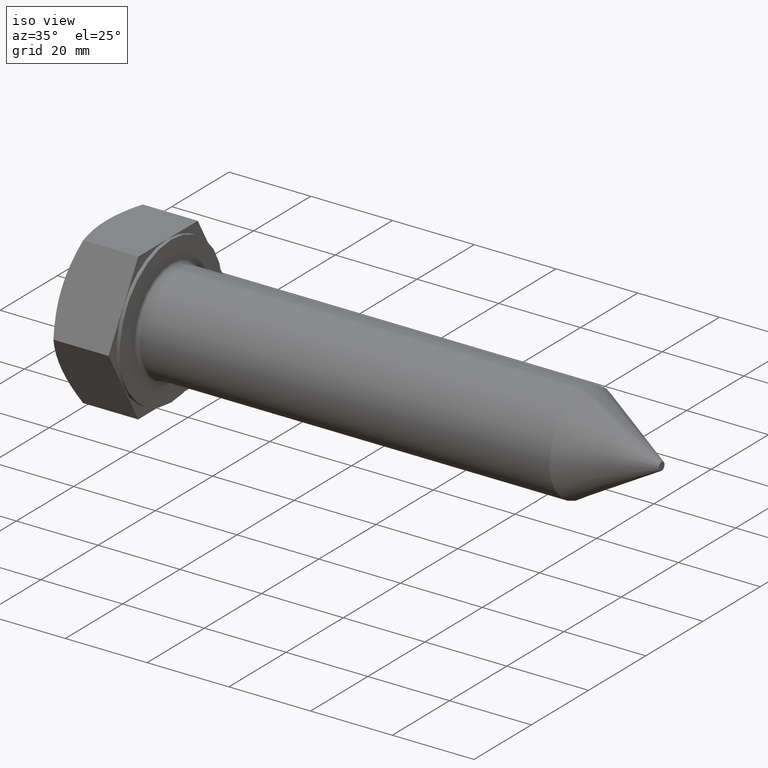
[diagram: clean part render]
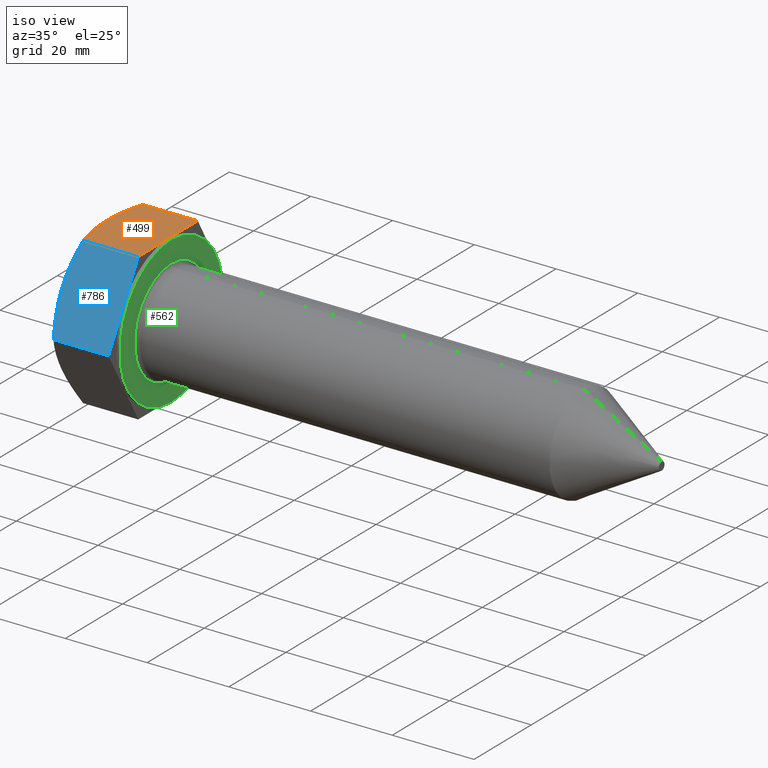
[diagram: same view with three faces highlighted in distinct colors, each labeled with its STEP entity id]
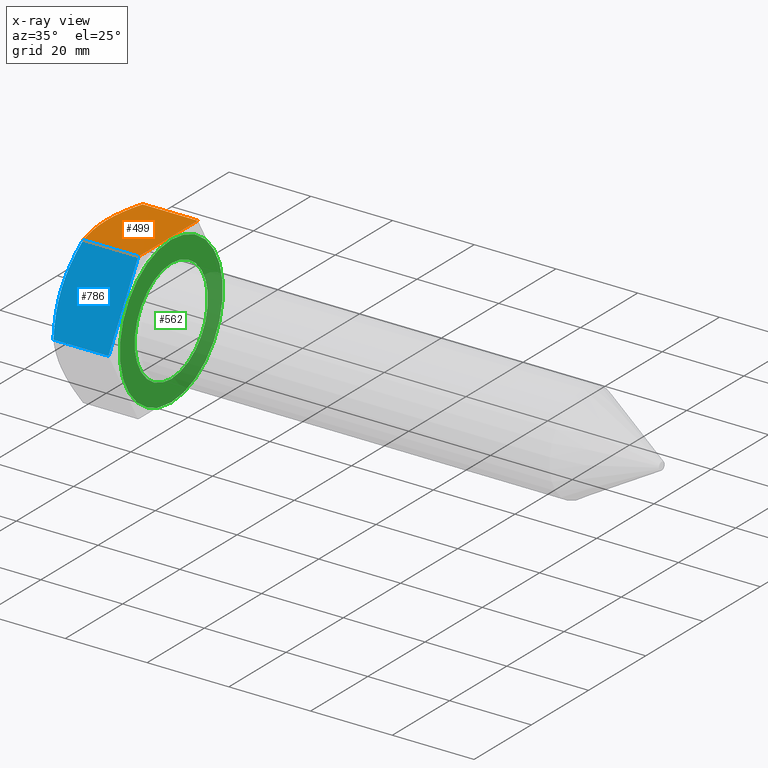
[diagram: x-ray of the same camera — body ghosted, the three highlighted faces saturated]
A machine part, iso view with three faces highlighted in distinct colors.
The next image is the same camera in x-ray (body ghosted, the three faces saturated) — at least one of them is partly hidden behind the body in this view.
Their STEP definitions:

[orange] entity #499 — the highlighted planar face has unit normal (0, 0, -1).
#11 = VERTEX_POINT ( 'NONE', #793 ) ;
#14 = EDGE_CURVE ( 'NONE', #815, #11, #583, .T. ) ;
#15 = CARTESIAN_POINT ( 'NONE',  ( 0.1861329649104769279, 3.532202406795380334, 18.00000000000000000 ) ) ;
#22 = CARTESIAN_POINT ( 'NONE',  ( 15.10000000000000142, 10.39230484541324984, 18.00000000000000000 ) ) ;
#66 = EDGE_LOOP ( 'NONE', ( #217, #354, #667, #346, #111, #535 ) ) ;
#82 = EDGE_CURVE ( 'NONE', #232, #815, #436, .T. ) ;
#98 = CARTESIAN_POINT ( 'NONE',  ( -9.833111369903254396E-16, -1.757439789148936171, 17.99999999999999289 ) ) ;
#110 = CARTESIAN_POINT ( 'NONE',  ( 15.10000000000000142, 10.39230484541324984, 18.00000000000000000 ) ) ;
#111 = ORIENTED_EDGE ( 'NONE', *, *, #284, .F. ) ;
#133 = VECTOR ( 'NONE', #236, 1000.000000000000000 ) ;
#156 = CARTESIAN_POINT ( 'NONE',  ( 0.1511496491369540007, -3.502203439732907597, 17.99999999999999645 ) ) ;
#159 = CARTESIAN_POINT ( 'NONE',  ( 0.000000000000000000, -3.004629197474327134E-15, 18.00000000000000000 ) ) ;
#164 = DIRECTION ( 'NONE',  ( 0.000000000000000000, 1.000000000000000000, 1.669238443041292852E-16 ) ) ;
#167 = CARTESIAN_POINT ( 'NONE',  ( 15.10000000000000142, 0.000000000000000000, 18.00000000000000000 ) ) ;
#188 = VERTEX_POINT ( 'NONE', #605 ) ;
#217 = ORIENTED_EDGE ( 'NONE', *, *, #82, .F. ) ;
#230 = PLANE ( 'NONE',  #804 ) ;
#232 = VERTEX_POINT ( 'NONE', #110 ) ;
#236 = DIRECTION ( 'NONE',  ( 0.000000000000000000, -1.000000000000000000, -1.669238443041292852E-16 ) ) ;
#238 = FACE_OUTER_BOUND ( 'NONE', #66, .T. ) ;
#284 = EDGE_CURVE ( 'NONE', #11, #188, #889, .T. ) ;
#306 = EDGE_CURVE ( 'NONE', #232, #895, #678, .T. ) ;
#307 = VECTOR ( 'NONE', #746, 1000.000000000000000 ) ;
#311 = CARTESIAN_POINT ( 'NONE',  ( 0.2962297688443727983, 4.407606553784678916, 18.00000000000000000 ) ) ;
#346 = ORIENTED_EDGE ( 'NONE', *, *, #443, .F. ) ;
#354 = ORIENTED_EDGE ( 'NONE', *, *, #306, .T. ) ;
#364 = VECTOR ( 'NONE', #654, 1000.000000000000000 ) ;
#370 = CARTESIAN_POINT ( 'NONE',  ( 1.607695154586711306, -10.39230484541321786, 17.99999999999999645 ) ) ;
#380 = CARTESIAN_POINT ( 'NONE',  ( 0.000000000000000000, -3.004629197474327134E-15, 18.00000000000000000 ) ) ;
#394 = CARTESIAN_POINT ( 'NONE',  ( 0.7420490696905722716, -6.967527342740340579, 18.00000000000000000 ) ) ;
#423 = CARTESIAN_POINT ( 'NONE',  ( 15.90000000000000036, -10.39230484541321786, 17.99999999999999645 ) ) ;
#432 = DIRECTION ( 'NONE',  ( 0.000000000000000000, 1.669238443041292852E-16, -1.000000000000000000 ) ) ;
#435 = CARTESIAN_POINT ( 'NONE',  ( 15.90000000000000036, 10.39230484541324984, 18.00000000000000000 ) ) ;
#436 = LINE ( 'NONE', #861, #364 ) ;
#443 = EDGE_CURVE ( 'NONE', #188, #595, #744, .T. ) ;
#475 = DIRECTION ( 'NONE',  ( -1.000000000000000000, -0.000000000000000000, -0.000000000000000000 ) ) ;
#498 = CARTESIAN_POINT ( 'NONE',  ( 1.363545094715576500, -9.546544228677626975, 18.00000000000000000 ) ) ;
#499 = ADVANCED_FACE ( 'NONE', ( #238 ), #230, .F. ) ;
#533 = EDGE_CURVE ( 'NONE', #595, #895, #760, .T. ) ;
#535 = ORIENTED_EDGE ( 'NONE', *, *, #14, .F. ) ;
#538 = CARTESIAN_POINT ( 'NONE',  ( 0.000000000000000000, -3.004629197474327134E-15, 18.00000000000000000 ) ) ;
#576 = CARTESIAN_POINT ( 'NONE',  ( 0.5705999791138046673, -6.103185995793325880, 17.99999999999999645 ) ) ;
#581 = CARTESIAN_POINT ( 'NONE',  ( 0.03745816183298621149, 1.762465172387030377, 17.99999999999999645 ) ) ;
#583 = LINE ( 'NONE', #22, #133 ) ;
#586 = CARTESIAN_POINT ( 'NONE',  ( 0.7186714481883521577, 7.009429243568276569, 18.00000000000000355 ) ) ;
#595 = VERTEX_POINT ( 'NONE', #538 ) ;
#605 = CARTESIAN_POINT ( 'NONE',  ( 1.607695154586711306, -10.39230484541321786, 17.99999999999999645 ) ) ;
#635 = CARTESIAN_POINT ( 'NONE',  ( -1.032956679176618869E-15, 0.8793290471263817132, 17.99999999999999645 ) ) ;
#639 = CARTESIAN_POINT ( 'NONE',  ( 1.139104001433366431, -8.691668190334251420, 17.99999999999999289 ) ) ;
#654 = DIRECTION ( 'NONE',  ( 0.000000000000000000, -1.000000000000000000, -1.669238443041292852E-16 ) ) ;
#667 = ORIENTED_EDGE ( 'NONE', *, *, #533, .F. ) ;
#678 = LINE ( 'NONE', #691, #307 ) ;
#691 = CARTESIAN_POINT ( 'NONE',  ( 15.90000000000000036, 10.39230484541324984, 18.00000000000000000 ) ) ;
#703 = VECTOR ( 'NONE', #475, 1000.000000000000000 ) ;
#744 = B_SPLINE_CURVE_WITH_KNOTS ( 'NONE', 3,
 ( #370, #498, #639, #394, #576, #156, #98, #159 ),
 .UNSPECIFIED., .F., .F.,
 ( 4, 2, 2, 4 ),
 ( 0.01898813626323230322, 0.02161756088090733760, 0.02424698549858237198, 0.02950583473393243727 ),
 .UNSPECIFIED. ) ;
#746 = DIRECTION ( 'NONE',  ( -1.000000000000000000, -0.000000000000000000, -0.000000000000000000 ) ) ;
#760 = B_SPLINE_CURVE_WITH_KNOTS ( 'NONE', 3,
 ( #380, #635, #581, #15, #311, #586, #789, #776 ),
 .UNSPECIFIED., .F., .F.,
 ( 4, 2, 2, 4 ),
 ( 0.02950583473393243727, 0.03213708214033209748, 0.03476832954673175768, 0.04003082435953108503 ),
 .UNSPECIFIED. ) ;
#776 = CARTESIAN_POINT ( 'NONE',  ( 1.607695154586723074, 10.39230484541324984, 18.00000000000000000 ) ) ;
#789 = CARTESIAN_POINT ( 'NONE',  ( 1.122525531275964106, 8.711627969686659867, 18.00000000000000000 ) ) ;
#793 = CARTESIAN_POINT ( 'NONE',  ( 15.10000000000000142, -10.39230484541321786, 17.99999999999999645 ) ) ;
#804 = AXIS2_PLACEMENT_3D ( 'NONE', #435, #432, #164 ) ;
#815 = VERTEX_POINT ( 'NONE', #167 ) ;
#861 = CARTESIAN_POINT ( 'NONE',  ( 15.10000000000000142, 10.39230484541324984, 18.00000000000000000 ) ) ;
#863 = CARTESIAN_POINT ( 'NONE',  ( 1.607695154586723074, 10.39230484541324984, 18.00000000000000000 ) ) ;
#889 = LINE ( 'NONE', #423, #703 ) ;
#895 = VERTEX_POINT ( 'NONE', #863 ) ;

[blue] entity #786 — the highlighted planar face has unit normal (0, 0.866, -0.5).
#4 = CARTESIAN_POINT ( 'NONE',  ( 15.90000000000000036, -20.78460969082653520, 0.000000000000000000 ) ) ;
#8 = CARTESIAN_POINT ( 'NONE',  ( 0.000000000000000000, -15.58845726811987298, 9.000000000000035527 ) ) ;
#11 = VERTEX_POINT ( 'NONE', #793 ) ;
#21 = CARTESIAN_POINT ( 'NONE',  ( 15.10000000000000142, -20.78460969082653520, 0.000000000000000000 ) ) ;
#30 = VECTOR ( 'NONE', #242, 1000.000000000000114 ) ;
#50 = DIRECTION ( 'NONE',  ( -1.000000000000000000, -0.000000000000000000, -0.000000000000000000 ) ) ;
#53 = B_SPLINE_CURVE_WITH_KNOTS ( 'NONE', 3,
 ( #839, #637, #145, #83, #564, #568 ),
 .UNSPECIFIED., .F., .F.,
 ( 4, 2, 4 ),
 ( 2.380728322783984379E-07, 0.005257893135091062063, 0.01051554819734984610 ),
 .UNSPECIFIED. ) ;
#61 = AXIS2_PLACEMENT_3D ( 'NONE', #4, #285, #560 ) ;
#69 = CARTESIAN_POINT ( 'NONE',  ( 1.607695154586711306, -10.39230484541321786, 17.99999999999999645 ) ) ;
#83 = CARTESIAN_POINT ( 'NONE',  ( 0.1532218116813510445, -17.34799259689862438, 5.952395412842812483 ) ) ;
#86 = CARTESIAN_POINT ( 'NONE',  ( 15.10000000000000142, -20.78460969082653520, 0.000000000000000000 ) ) ;
#87 = EDGE_CURVE ( 'NONE', #11, #563, #701, .T. ) ;
#101 = CARTESIAN_POINT ( 'NONE',  ( 0.000000000000000000, -15.58845726811987298, 9.000000000000035527 ) ) ;
#128 = LINE ( 'NONE', #805, #649 ) ;
#145 = CARTESIAN_POINT ( 'NONE',  ( 0.7126204852947248813, -19.07835557137324400, 2.955318825516787040 ) ) ;
#154 = FACE_OUTER_BOUND ( 'NONE', #828, .T. ) ;
#179 = EDGE_CURVE ( 'NONE', #500, #578, #128, .T. ) ;
#188 = VERTEX_POINT ( 'NONE', #605 ) ;
#202 = CARTESIAN_POINT ( 'NONE',  ( 0.1850551574587440407, -13.82825457289346716, 12.04876049975180052 ) ) ;
#213 = CARTESIAN_POINT ( 'NONE',  ( 0.2939692054342004646, -13.39305315375700900, 12.80255146922222131 ) ) ;
#233 = PLANE ( 'NONE',  #61 ) ;
#240 = ORIENTED_EDGE ( 'NONE', *, *, #742, .F. ) ;
#241 = CARTESIAN_POINT ( 'NONE',  ( 15.10000000000000142, -20.78460969082653520, 0.000000000000000000 ) ) ;
#242 = DIRECTION ( 'NONE',  ( 0.000000000000000000, -0.5000000000000018874, -0.8660254037844374864 ) ) ;
#249 = ORIENTED_EDGE ( 'NONE', *, *, #290, .F. ) ;
#258 = CARTESIAN_POINT ( 'NONE',  ( 1.607695154586731512, -20.78460969082653520, -6.189267279696335278E-16 ) ) ;
#284 = EDGE_CURVE ( 'NONE', #11, #188, #889, .T. ) ;
#285 = DIRECTION ( 'NONE',  ( 0.000000000000000000, 0.8660254037844375974, -0.5000000000000019984 ) ) ;
#286 = CARTESIAN_POINT ( 'NONE',  ( 1.118160017449559396, -11.24020457502480141, 16.53139458858883515 ) ) ;
#288 = B_SPLINE_CURVE_WITH_KNOTS ( 'NONE', 3,
 ( #8, #555, #494, #291, #356, #202, #213, #814, #286, #69 ),
 .UNSPECIFIED., .F., .F.,
 ( 4, 2, 2, 2, 4 ),
 ( 0.01051554819734984610, 0.01182504667393349633, 0.01313454515051714483, 0.01575354210368443836, 0.02099153601001902542 ),
 .UNSPECIFIED. ) ;
#290 = EDGE_CURVE ( 'NONE', #874, #188, #288, .T. ) ;
#291 = CARTESIAN_POINT ( 'NONE',  ( 0.04683108270947267116, -14.70525031332732979, 10.52975931929887032 ) ) ;
#333 = ORIENTED_EDGE ( 'NONE', *, *, #404, .F. ) ;
#356 = CARTESIAN_POINT ( 'NONE',  ( 0.07476367467993630389, -14.48545281793691686, 10.91045974869144786 ) ) ;
#404 = EDGE_CURVE ( 'NONE', #563, #500, #686, .T. ) ;
#423 = CARTESIAN_POINT ( 'NONE',  ( 15.90000000000000036, -10.39230484541321786, 17.99999999999999645 ) ) ;
#424 = ORIENTED_EDGE ( 'NONE', *, *, #284, .T. ) ;
#475 = DIRECTION ( 'NONE',  ( -1.000000000000000000, -0.000000000000000000, -0.000000000000000000 ) ) ;
#494 = CARTESIAN_POINT ( 'NONE',  ( 0.009429105422151376481, -15.14637444941019950, 9.765709903158414917 ) ) ;
#500 = VERTEX_POINT ( 'NONE', #241 ) ;
#506 = DIRECTION ( 'NONE',  ( 0.000000000000000000, -0.5000000000000018874, -0.8660254037844374864 ) ) ;
#532 = CARTESIAN_POINT ( 'NONE',  ( 15.10000000000000142, -15.58845726811987475, 9.000000000000035527 ) ) ;
#541 = ORIENTED_EDGE ( 'NONE', *, *, #179, .F. ) ;
#555 = CARTESIAN_POINT ( 'NONE',  ( -1.004559899619918845E-14, -15.36796739199401252, 9.381899668004569648 ) ) ;
#560 = DIRECTION ( 'NONE',  ( 0.000000000000000000, 0.5000000000000018874, 0.8660254037844374864 ) ) ;
#563 = VERTEX_POINT ( 'NONE', #532 ) ;
#564 = CARTESIAN_POINT ( 'NONE',  ( -9.906897351086296766E-15, -16.47372726584776714, 7.466667385518913846 ) ) ;
#568 = CARTESIAN_POINT ( 'NONE',  ( 0.000000000000000000, -15.58845726811987298, 9.000000000000035527 ) ) ;
#578 = VERTEX_POINT ( 'NONE', #258 ) ;
#605 = CARTESIAN_POINT ( 'NONE',  ( 1.607695154586711306, -10.39230484541321786, 17.99999999999999645 ) ) ;
#637 = CARTESIAN_POINT ( 'NONE',  ( 1.116934336526958615, -19.93458701958329016, 1.472282454178710287 ) ) ;
#649 = VECTOR ( 'NONE', #50, 1000.000000000000000 ) ;
#680 = ORIENTED_EDGE ( 'NONE', *, *, #87, .F. ) ;
#686 = LINE ( 'NONE', #21, #729 ) ;
#701 = LINE ( 'NONE', #86, #30 ) ;
#703 = VECTOR ( 'NONE', #475, 1000.000000000000000 ) ;
#729 = VECTOR ( 'NONE', #506, 1000.000000000000114 ) ;
#742 = EDGE_CURVE ( 'NONE', #578, #874, #53, .T. ) ;
#786 = ADVANCED_FACE ( 'NONE', ( #154 ), #233, .F. ) ;
#793 = CARTESIAN_POINT ( 'NONE',  ( 15.10000000000000142, -10.39230484541321786, 17.99999999999999645 ) ) ;
#805 = CARTESIAN_POINT ( 'NONE',  ( 15.90000000000000036, -20.78460969082653520, 0.000000000000000000 ) ) ;
#814 = CARTESIAN_POINT ( 'NONE',  ( 0.7140392532422266125, -12.09517842721667158, 15.05053643744964376 ) ) ;
#828 = EDGE_LOOP ( 'NONE', ( #680, #424, #249, #240, #541, #333 ) ) ;
#839 = CARTESIAN_POINT ( 'NONE',  ( 1.607695154586731512, -20.78460969082653520, -6.189267279696335278E-16 ) ) ;
#874 = VERTEX_POINT ( 'NONE', #101 ) ;
#889 = LINE ( 'NONE', #423, #703 ) ;

[green] entity #562 — the highlighted planar face has unit normal (1, 0, -0).
#77 = VERTEX_POINT ( 'NONE', #165 ) ;
#103 = CARTESIAN_POINT ( 'NONE',  ( 15.90000000000000036, 2.204364238465235428E-15, -18.00000000000000000 ) ) ;
#125 = VERTEX_POINT ( 'NONE', #103 ) ;
#138 = CARTESIAN_POINT ( 'NONE',  ( 15.90000000000000036, 0.000000000000000000, -12.80000000000000071 ) ) ;
#165 = CARTESIAN_POINT ( 'NONE',  ( 15.90000000000000036, 1.567547902908612184E-15, 12.80000000000000071 ) ) ;
#177 = AXIS2_PLACEMENT_3D ( 'NONE', #780, #218, #575 ) ;
#198 = EDGE_CURVE ( 'NONE', #303, #77, #747, .T. ) ;
#218 = DIRECTION ( 'NONE',  ( 1.000000000000000000, 0.000000000000000000, -0.000000000000000000 ) ) ;
#221 = CIRCLE ( 'NONE', #177, 18.00000000000000000 ) ;
#227 = ORIENTED_EDGE ( 'NONE', *, *, #365, .T. ) ;
#229 = CARTESIAN_POINT ( 'NONE',  ( 15.90000000000000036, 0.000000000000000000, 0.000000000000000000 ) ) ;
#237 = ORIENTED_EDGE ( 'NONE', *, *, #743, .T. ) ;
#252 = DIRECTION ( 'NONE',  ( 0.000000000000000000, 0.000000000000000000, -1.000000000000000000 ) ) ;
#282 = DIRECTION ( 'NONE',  ( 1.000000000000000000, 0.000000000000000000, -0.000000000000000000 ) ) ;
#294 = DIRECTION ( 'NONE',  ( 0.000000000000000000, 0.000000000000000000, -1.000000000000000000 ) ) ;
#296 = AXIS2_PLACEMENT_3D ( 'NONE', #229, #429, #294 ) ;
#303 = VERTEX_POINT ( 'NONE', #138 ) ;
#357 = EDGE_LOOP ( 'NONE', ( #687, #237 ) ) ;
#365 = EDGE_CURVE ( 'NONE', #125, #495, #552, .T. ) ;
#392 = AXIS2_PLACEMENT_3D ( 'NONE', #543, #400, #676 ) ;
#400 = DIRECTION ( 'NONE',  ( 1.000000000000000000, 0.000000000000000000, -0.000000000000000000 ) ) ;
#411 = PLANE ( 'NONE',  #392 ) ;
#429 = DIRECTION ( 'NONE',  ( -1.000000000000000000, -0.000000000000000000, 0.000000000000000000 ) ) ;
#495 = VERTEX_POINT ( 'NONE', #782 ) ;
#502 = FACE_OUTER_BOUND ( 'NONE', #584, .T. ) ;
#543 = CARTESIAN_POINT ( 'NONE',  ( 15.90000000000000036, 20.78460969082654231, -4.801626444421300846E-15 ) ) ;
#552 = CIRCLE ( 'NONE', #779, 18.00000000000000000 ) ;
#562 = ADVANCED_FACE ( 'NONE', ( #840, #502 ), #411, .T. ) ;
#575 = DIRECTION ( 'NONE',  ( 0.000000000000000000, 0.000000000000000000, -1.000000000000000000 ) ) ;
#584 = EDGE_LOOP ( 'NONE', ( #857, #227 ) ) ;
#624 = CARTESIAN_POINT ( 'NONE',  ( 15.90000000000000036, 0.000000000000000000, 0.000000000000000000 ) ) ;
#676 = DIRECTION ( 'NONE',  ( -0.000000000000000000, 0.000000000000000000, -1.000000000000000000 ) ) ;
#679 = CIRCLE ( 'NONE', #296, 12.80000000000000071 ) ;
#687 = ORIENTED_EDGE ( 'NONE', *, *, #198, .T. ) ;
#731 = DIRECTION ( 'NONE',  ( -1.000000000000000000, -0.000000000000000000, 0.000000000000000000 ) ) ;
#743 = EDGE_CURVE ( 'NONE', #77, #303, #679, .T. ) ;
#747 = CIRCLE ( 'NONE', #864, 12.80000000000000071 ) ;
#775 = EDGE_CURVE ( 'NONE', #495, #125, #221, .T. ) ;
#779 = AXIS2_PLACEMENT_3D ( 'NONE', #624, #282, #893 ) ;
#780 = CARTESIAN_POINT ( 'NONE',  ( 15.90000000000000036, 0.000000000000000000, 0.000000000000000000 ) ) ;
#782 = CARTESIAN_POINT ( 'NONE',  ( 15.90000000000000036, 0.000000000000000000, 18.00000000000000000 ) ) ;
#840 = FACE_BOUND ( 'NONE', #357, .T. ) ;
#857 = ORIENTED_EDGE ( 'NONE', *, *, #775, .T. ) ;
#864 = AXIS2_PLACEMENT_3D ( 'NONE', #884, #731, #252 ) ;
#884 = CARTESIAN_POINT ( 'NONE',  ( 15.90000000000000036, 0.000000000000000000, 0.000000000000000000 ) ) ;
#893 = DIRECTION ( 'NONE',  ( 0.000000000000000000, 0.000000000000000000, -1.000000000000000000 ) ) ;